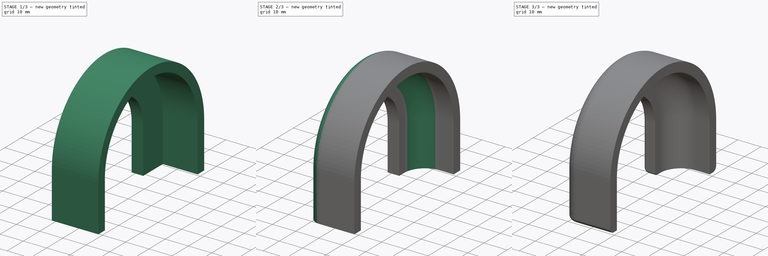
[diagram: build sequence overview — one tinted view per stage of 3, left to right]
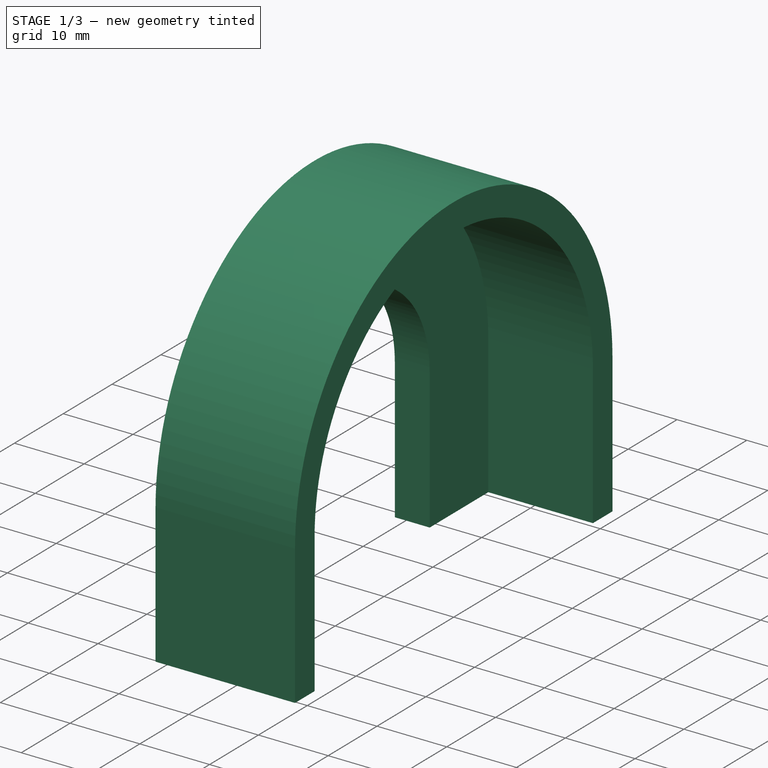
[diagram: stage 1 of 3 — iso view after this stage's code; geometry added in this stage tinted green]
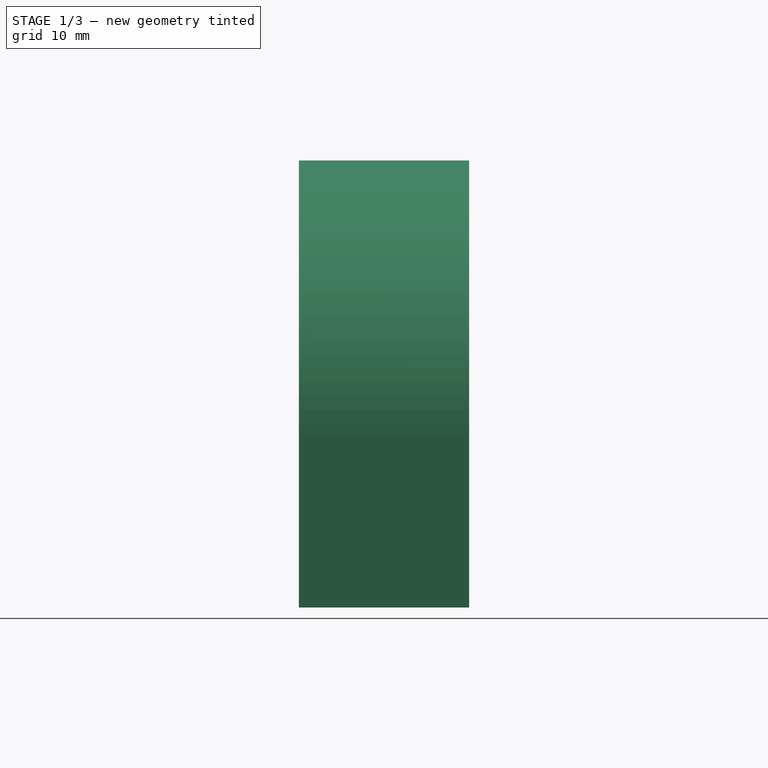
[diagram: stage 1 of 3 — front view after this stage's code; geometry added in this stage tinted green]
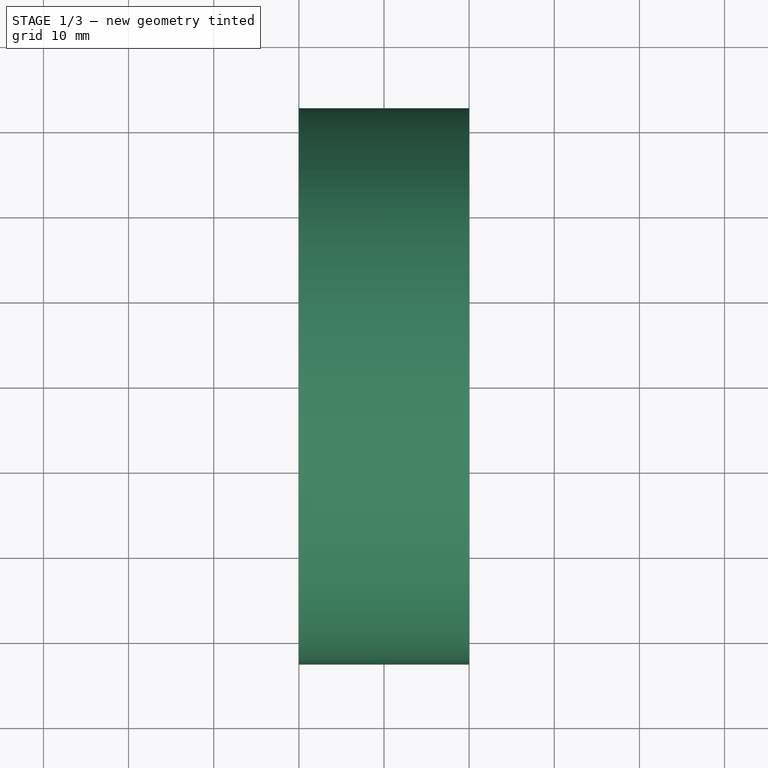
[diagram: stage 1 of 3 — top view after this stage's code; geometry added in this stage tinted green]
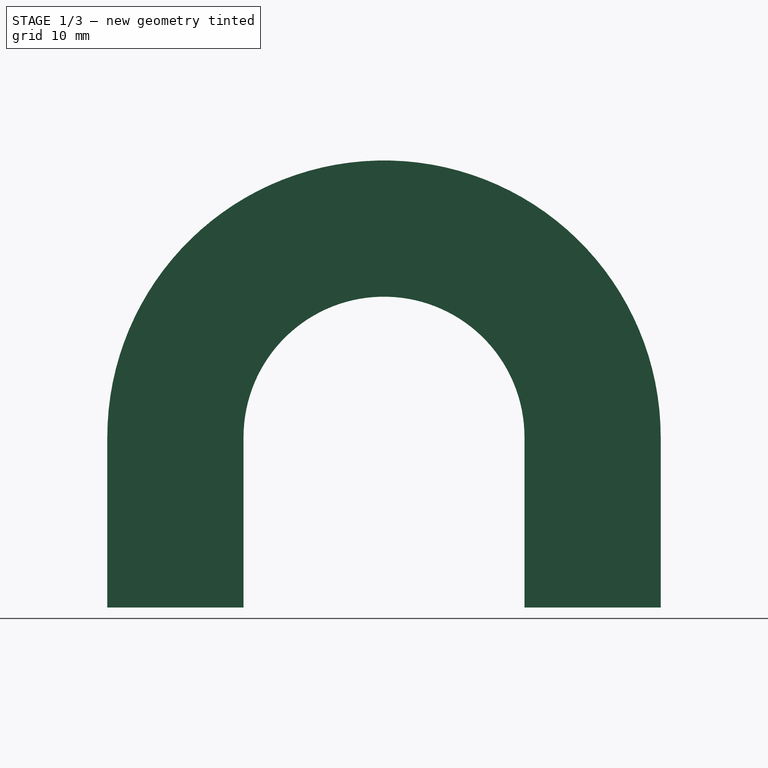
[diagram: stage 1 of 3 — right view after this stage's code; geometry added in this stage tinted green]
FCSTD DOCUMENT  (FreeCAD 0.15R4671 (Git))
Label: rain_cover_box
License: All rights reserved
LicenseURL: http://en.wikipedia.org/wiki/All_rights_reserved
objects: PartDesign::Fillet×4, Sketcher::SketchObject×2, PartDesign::Pad×1, PartDesign::Pocket×1
note: 10 computed .brp shape members not serialized (recipe doc carries the construction recipe); baked Part::Feature solids carry a one-line shape summary decoded from their .brp

FEATURE [Sketcher::SketchObject] Sketch
  Placement = pos=(0,0,0) rot=(0.57735,0.57735,0.57735;2.0944rad)
  sketch-geometry (8):
    g0: ArcOfCircle CenterX=0 CenterY=0 CenterZ=0 NormalX=0 NormalY=0 NormalZ=1 Radius=32.5 StartAngle=6.28319 EndAngle=9.42478
    g1: LineSegment StartX=32.5 StartY=-5.94039e-07 StartZ=0 EndX=32.5 EndY=-20 EndZ=0
    g2: LineSegment StartX=32.5 StartY=-20 StartZ=0 EndX=16.5 EndY=-20 EndZ=0
    g3: LineSegment StartX=-32.5 StartY=-20 StartZ=0 EndX=-32.5 EndY=1.49123e-06 EndZ=0
    g4: LineSegment StartX=-16.5 StartY=-20 StartZ=0 EndX=-16.5 EndY=-2.08542e-07 EndZ=0
    g5: LineSegment StartX=16.5 StartY=5.03494e-06 StartZ=0 EndX=16.5 EndY=-20 EndZ=0
    g6: LineSegment StartX=-16.5 StartY=-20 StartZ=0 EndX=-32.5 EndY=-20 EndZ=0
    g7: ArcOfCircle CenterX=0 CenterY=0 CenterZ=0 NormalX=0 NormalY=0 NormalZ=1 Radius=16.5 StartAngle=3.05148e-07 EndAngle=3.14159
  constraints (23):
    c: Coincident(g1,g2)
    c: Coincident(g6,g3)
    c: Horizontal(g2)
    c: Vertical(g1)
    c: Vertical(g3)
    c: Tangent(g3,g0)
    c: Tangent(g1,g0)
    c: Coincident(g0,g-1)
    c: Coincident(g0,g1)
    c: Coincident(g0,g3)
    c: Vertical(g4)
    c: Vertical(g5)
    c: Coincident(g5,g2)
    c: Coincident(g4,g6)
    c: Coincident(g7,g4)
    c: Coincident(g7,g5)
    c: Tangent(g7,g4)
    c: Coincident(g-1,g7)
    c: Radius(g7) = 16.5
    c: Symmetric(g4,g2,g-2)
    c: Horizontal(g6)
    c: DistanceY(g4) = 20
    c: DistanceX(g6) = -16
FEATURE [PartDesign::Pad] Pad
  Length = 20
  Length2 = 100
  Midplane = true
  Placement = pos=(0,0,0) rot=(0.57735,0.57735,0.57735;2.0944rad)
  Sketch = -> Sketch
  Type = 0
FEATURE [Sketcher::SketchObject] Sketch001
  ExternalGeometry = -> [Pad]
  Placement = pos=(10,0,0) rot=(0.57735,0.57735,0.57735;2.0944rad)
  Support = -> Pad [Face10]
  sketch-geometry (8):
    g0: LineSegment StartX=16.5 StartY=-20 StartZ=0 EndX=16.5 EndY=5.03487e-06 EndZ=0
    g1: LineSegment StartX=16.5 StartY=-20 StartZ=0 EndX=28.5 EndY=-20 EndZ=0
    g2: LineSegment StartX=28.5 StartY=-20 StartZ=0 EndX=28.5 EndY=0 EndZ=0
    g3: ArcOfCircle CenterX=0 CenterY=0 CenterZ=0 NormalX=0 NormalY=0 NormalZ=1 Radius=28.5 StartAngle=0 EndAngle=3.14159
    g4: LineSegment StartX=-28.5 StartY=0 StartZ=0 EndX=-28.5 EndY=-20 EndZ=0
    g5: LineSegment StartX=-28.5 StartY=-20 StartZ=0 EndX=-16.5 EndY=-20 EndZ=0
    g6: ArcOfCircle CenterX=0 CenterY=0 CenterZ=0 NormalX=0 NormalY=0 NormalZ=1 Radius=16.5 StartAngle=3.05143e-07 EndAngle=3.14159
    g7: LineSegment StartX=-16.5 StartY=-2.08535e-07 StartZ=0 EndX=-16.5 EndY=-20 EndZ=0
  constraints (20):
    c: Vertical(g0)
    c: Horizontal(g1)
    c: Coincident(g1,g2)
    c: Vertical(g2)
    c: Tangent(g2,g3) = -1.5708
    c: Tangent(g3,g4) = -1.5708
    c: Coincident(g4,g5)
    c: Horizontal(g5)
    c: Coincident(g6,g-4)
    c: Coincident(g6,g0)
    c: Coincident(g0,g-3)
    c: Vertical(g4)
    c: Coincident(g3,g-1)
    c: Coincident(g6,g-1)
    c: Coincident(g1,g0)
    c: Coincident(g0,g-3)
    c: Coincident(g7,g6)
    c: Coincident(g7,g5)
    c: Coincident(g5,g-4)
    c: DistanceX(g6,g3) = -12
FEATURE [PartDesign::Pocket] Pocket
  Length = 15
  Placement = pos=(0,0,0) rot=(0.57735,0.57735,0.57735;2.0944rad)
  Sketch = -> Sketch001
  Type = 0
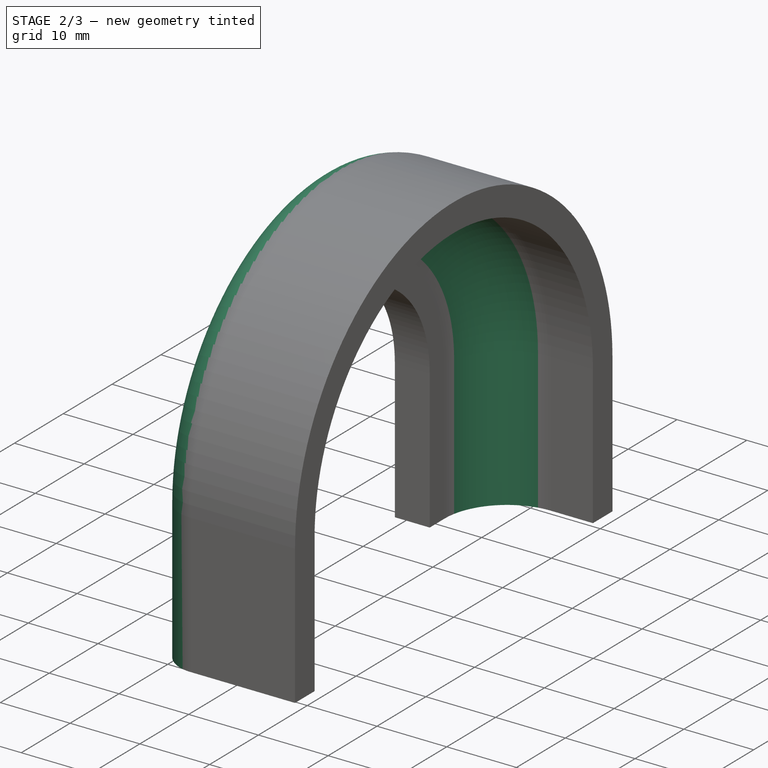
[diagram: stage 2 of 3 — iso view after this stage's code; geometry added in this stage tinted green]
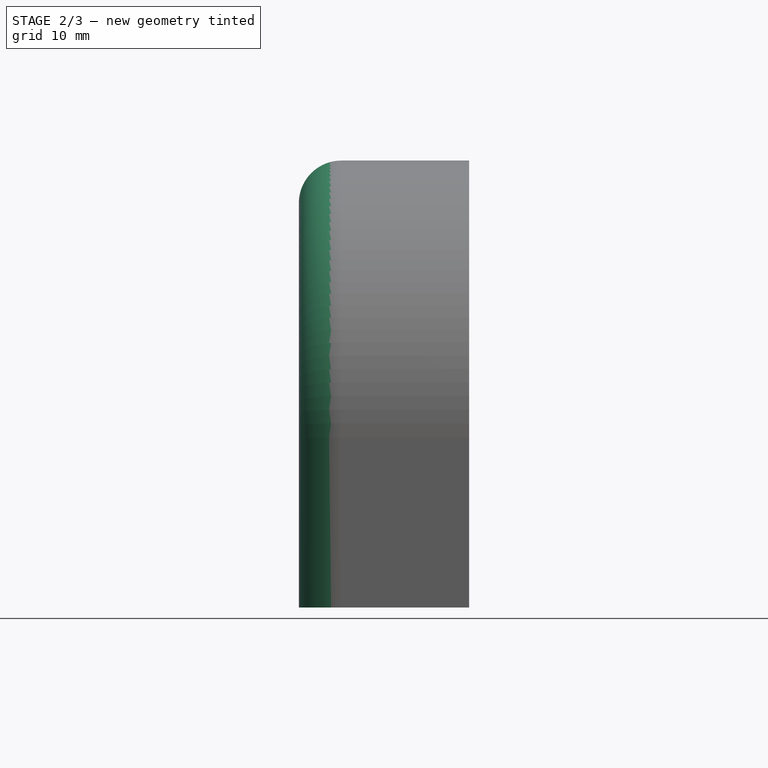
[diagram: stage 2 of 3 — front view after this stage's code; geometry added in this stage tinted green]
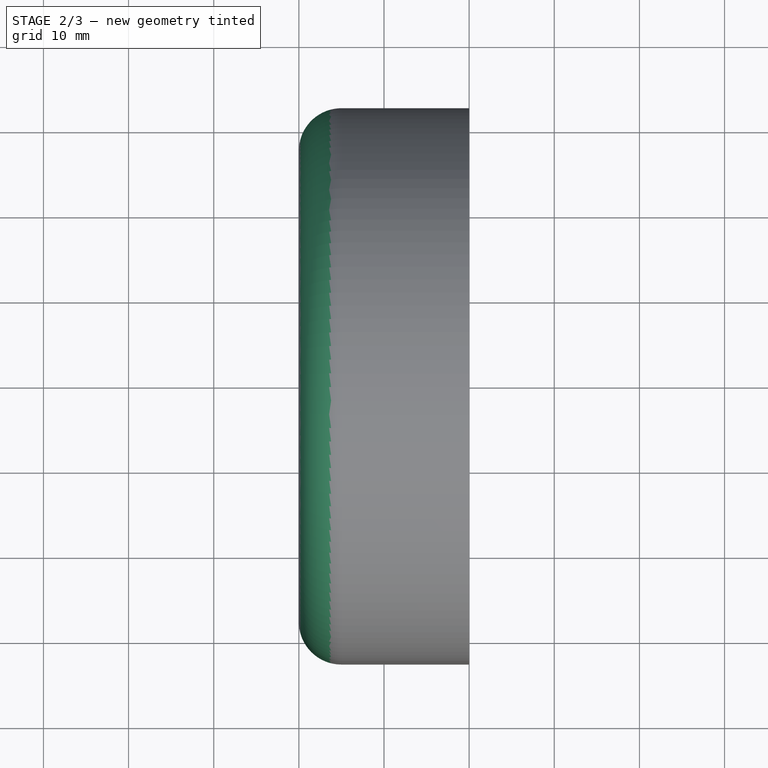
[diagram: stage 2 of 3 — top view after this stage's code; geometry added in this stage tinted green]
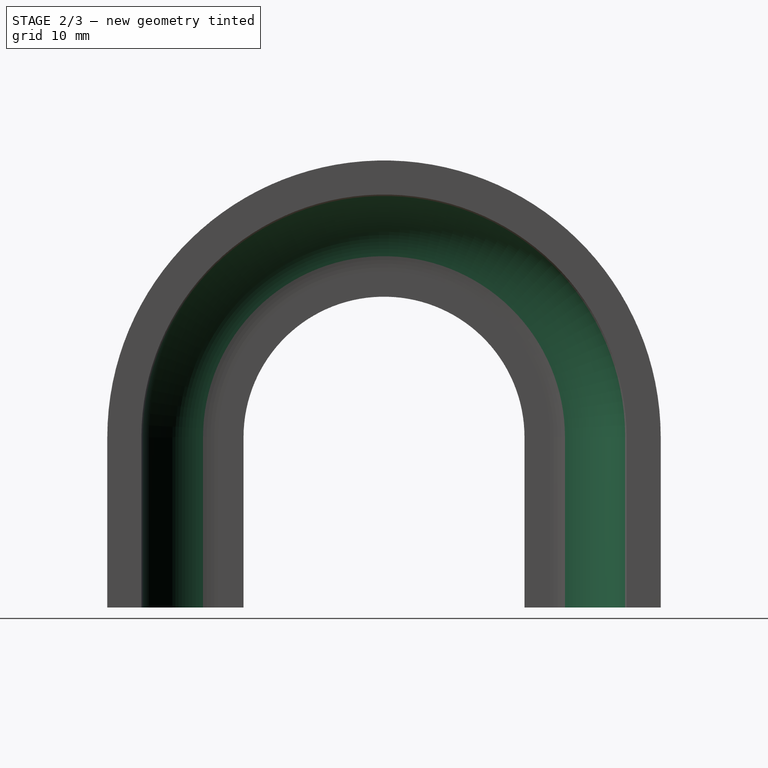
[diagram: stage 2 of 3 — right view after this stage's code; geometry added in this stage tinted green]
FEATURE [PartDesign::Fillet] Fillet
  Base = -> Pocket [Edge19]
  Placement = pos=(0,0,0) rot=(0.57735,0.57735,0.57735;2.0944rad)
  Radius = 9
FEATURE [PartDesign::Fillet] Fillet001
  Base = -> Fillet [Edge22]
  Placement = pos=(0,0,0) rot=(0.57735,0.57735,0.57735;2.0944rad)
  Radius = 5
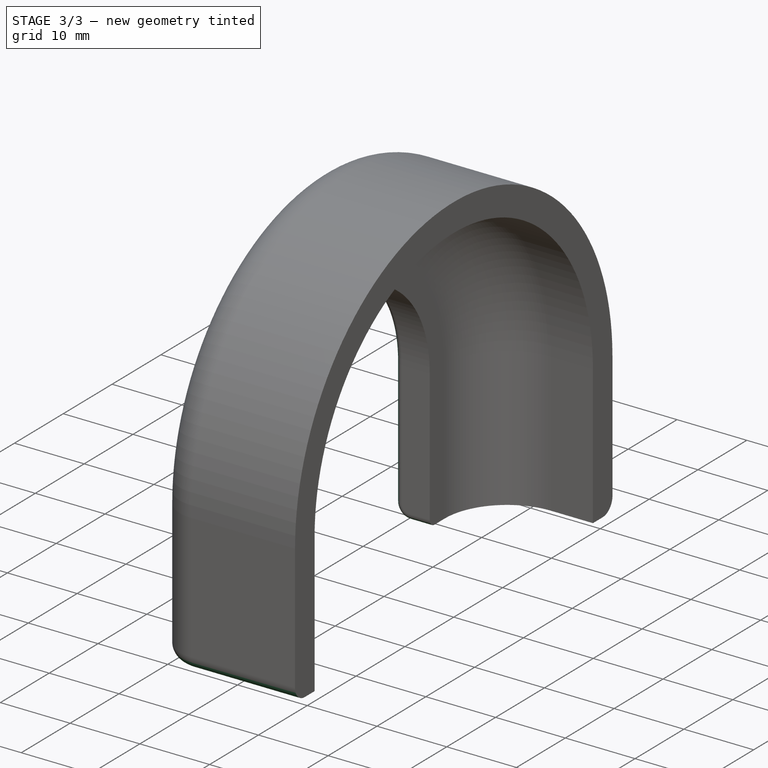
[diagram: stage 3 of 3 — iso view after this stage's code; geometry added in this stage tinted green]
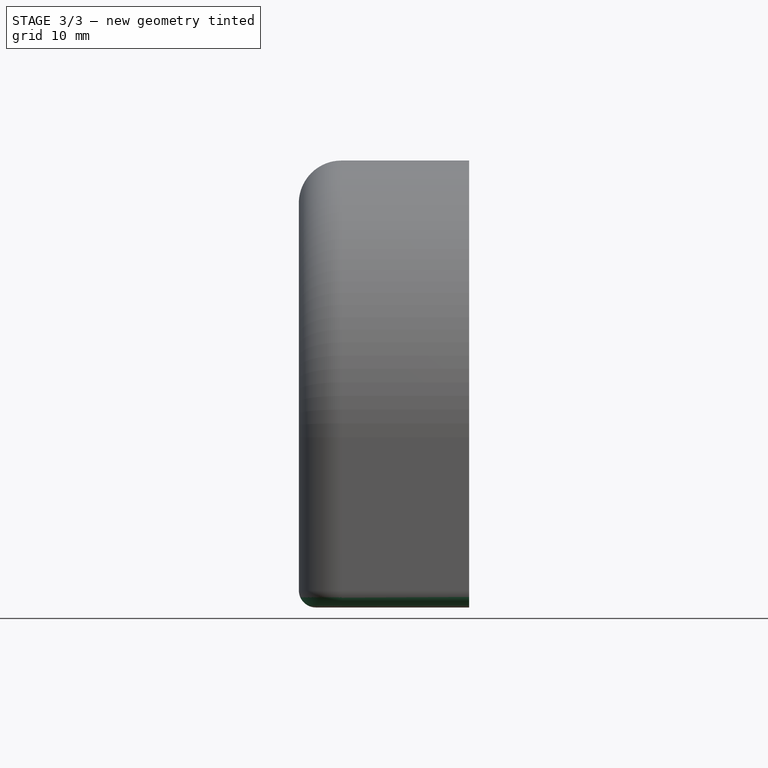
[diagram: stage 3 of 3 — front view after this stage's code; geometry added in this stage tinted green]
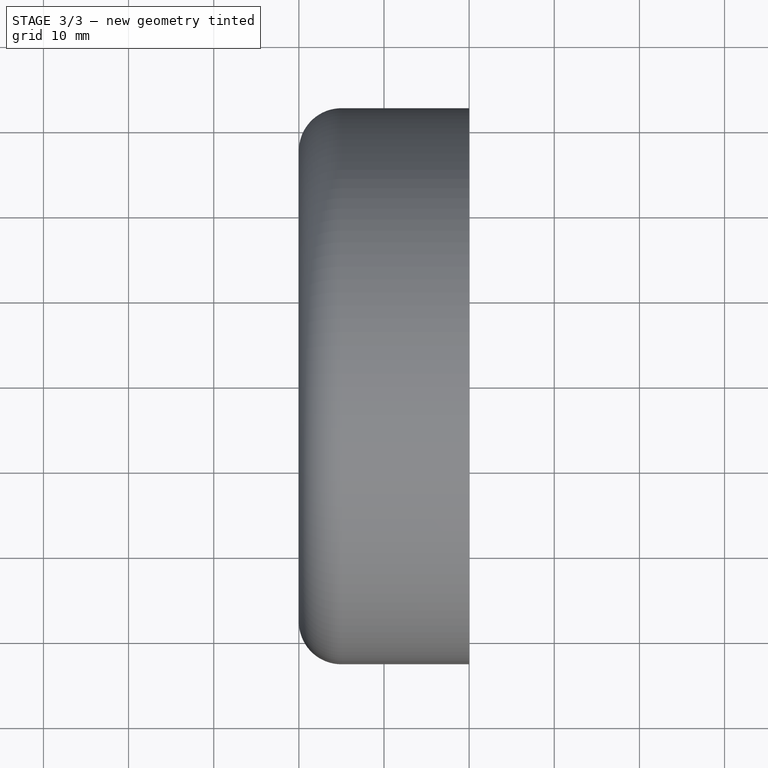
[diagram: stage 3 of 3 — top view after this stage's code; geometry added in this stage tinted green]
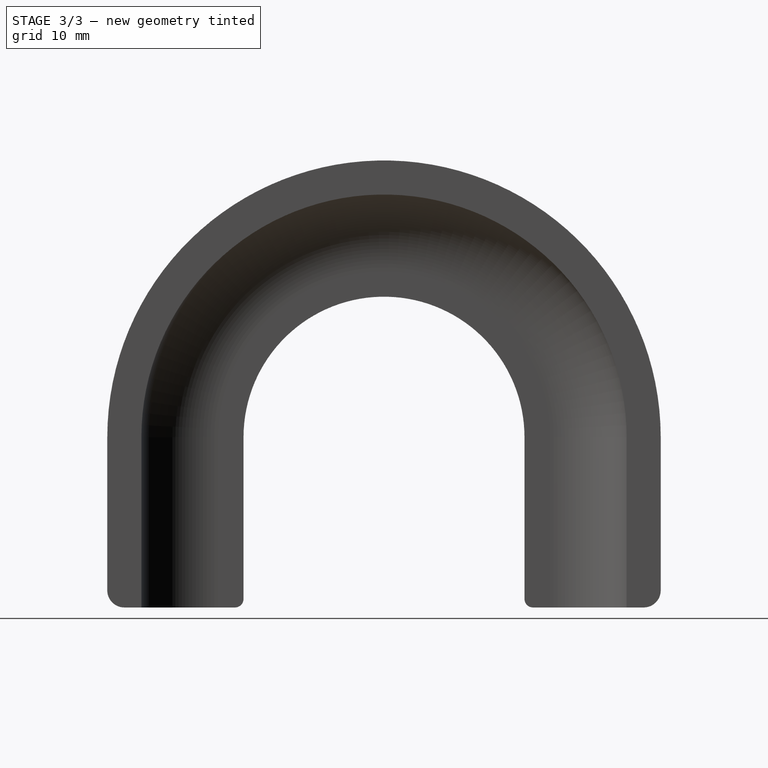
[diagram: stage 3 of 3 — right view after this stage's code; geometry added in this stage tinted green]
FEATURE [PartDesign::Fillet] Fillet002
  Base = -> Fillet001 [Edge2,Edge41]
  Placement = pos=(0,0,0) rot=(0.57735,0.57735,0.57735;2.0944rad)
  Radius = 2
FEATURE [PartDesign::Fillet] Fillet003
  Base = -> Fillet002 [Edge39]
  Placement = pos=(0,0,0) rot=(0.57735,0.57735,0.57735;2.0944rad)
  Radius = 1
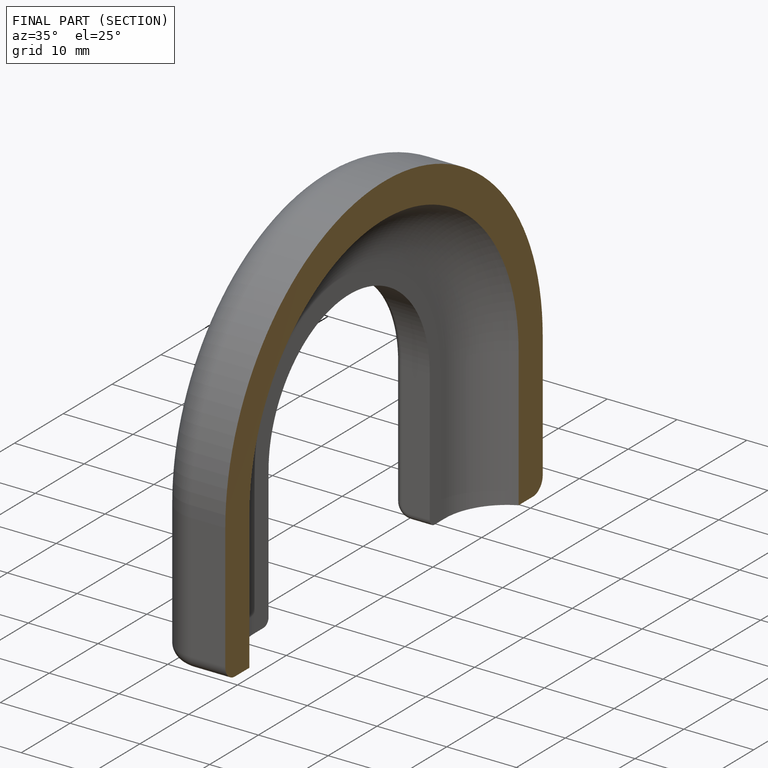
[diagram: finished part — half-section view (interior)]
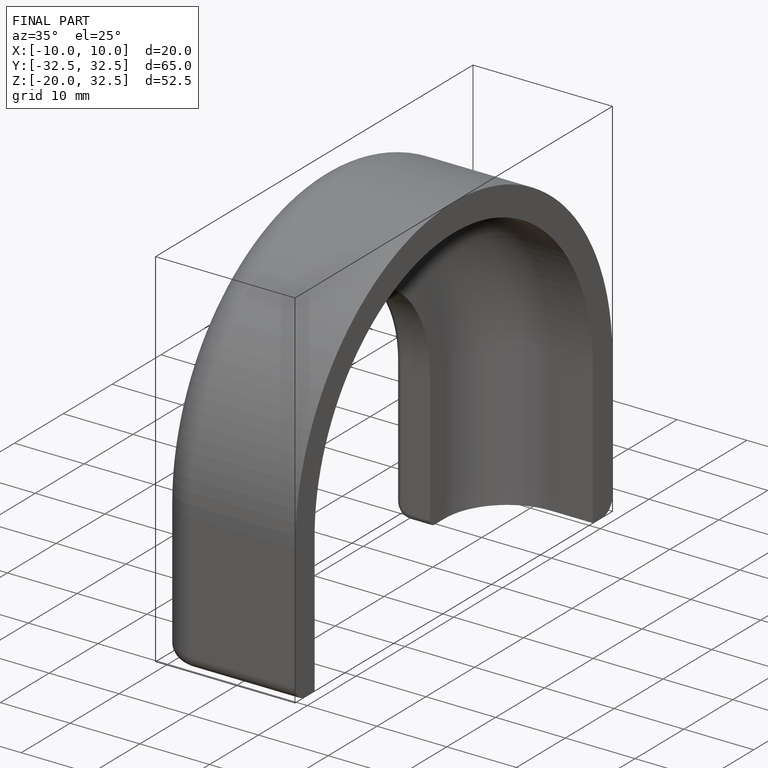
[diagram: finished part — iso view with bounding-box wireframe]
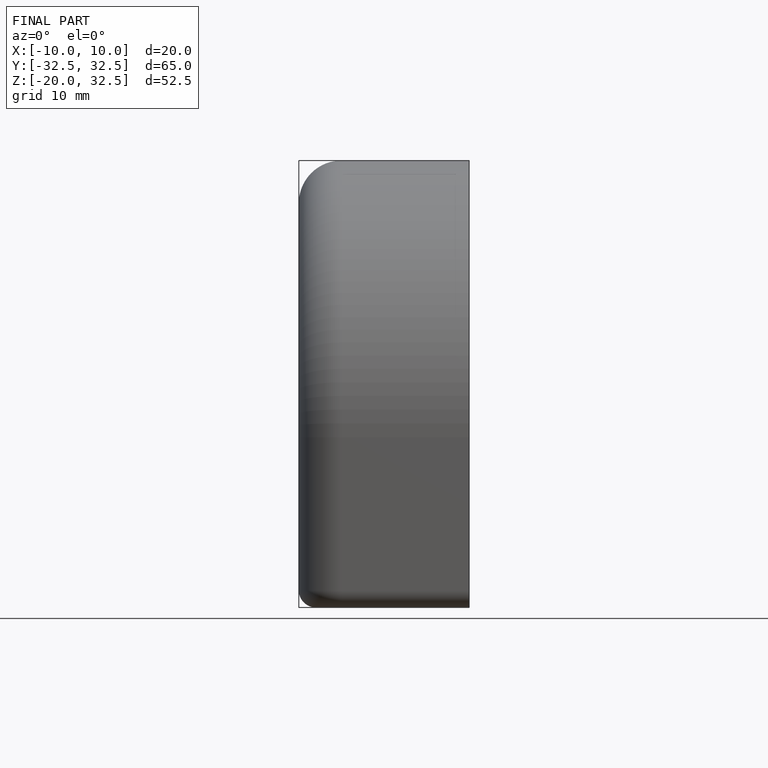
[diagram: finished part — front view with bounding-box wireframe]
